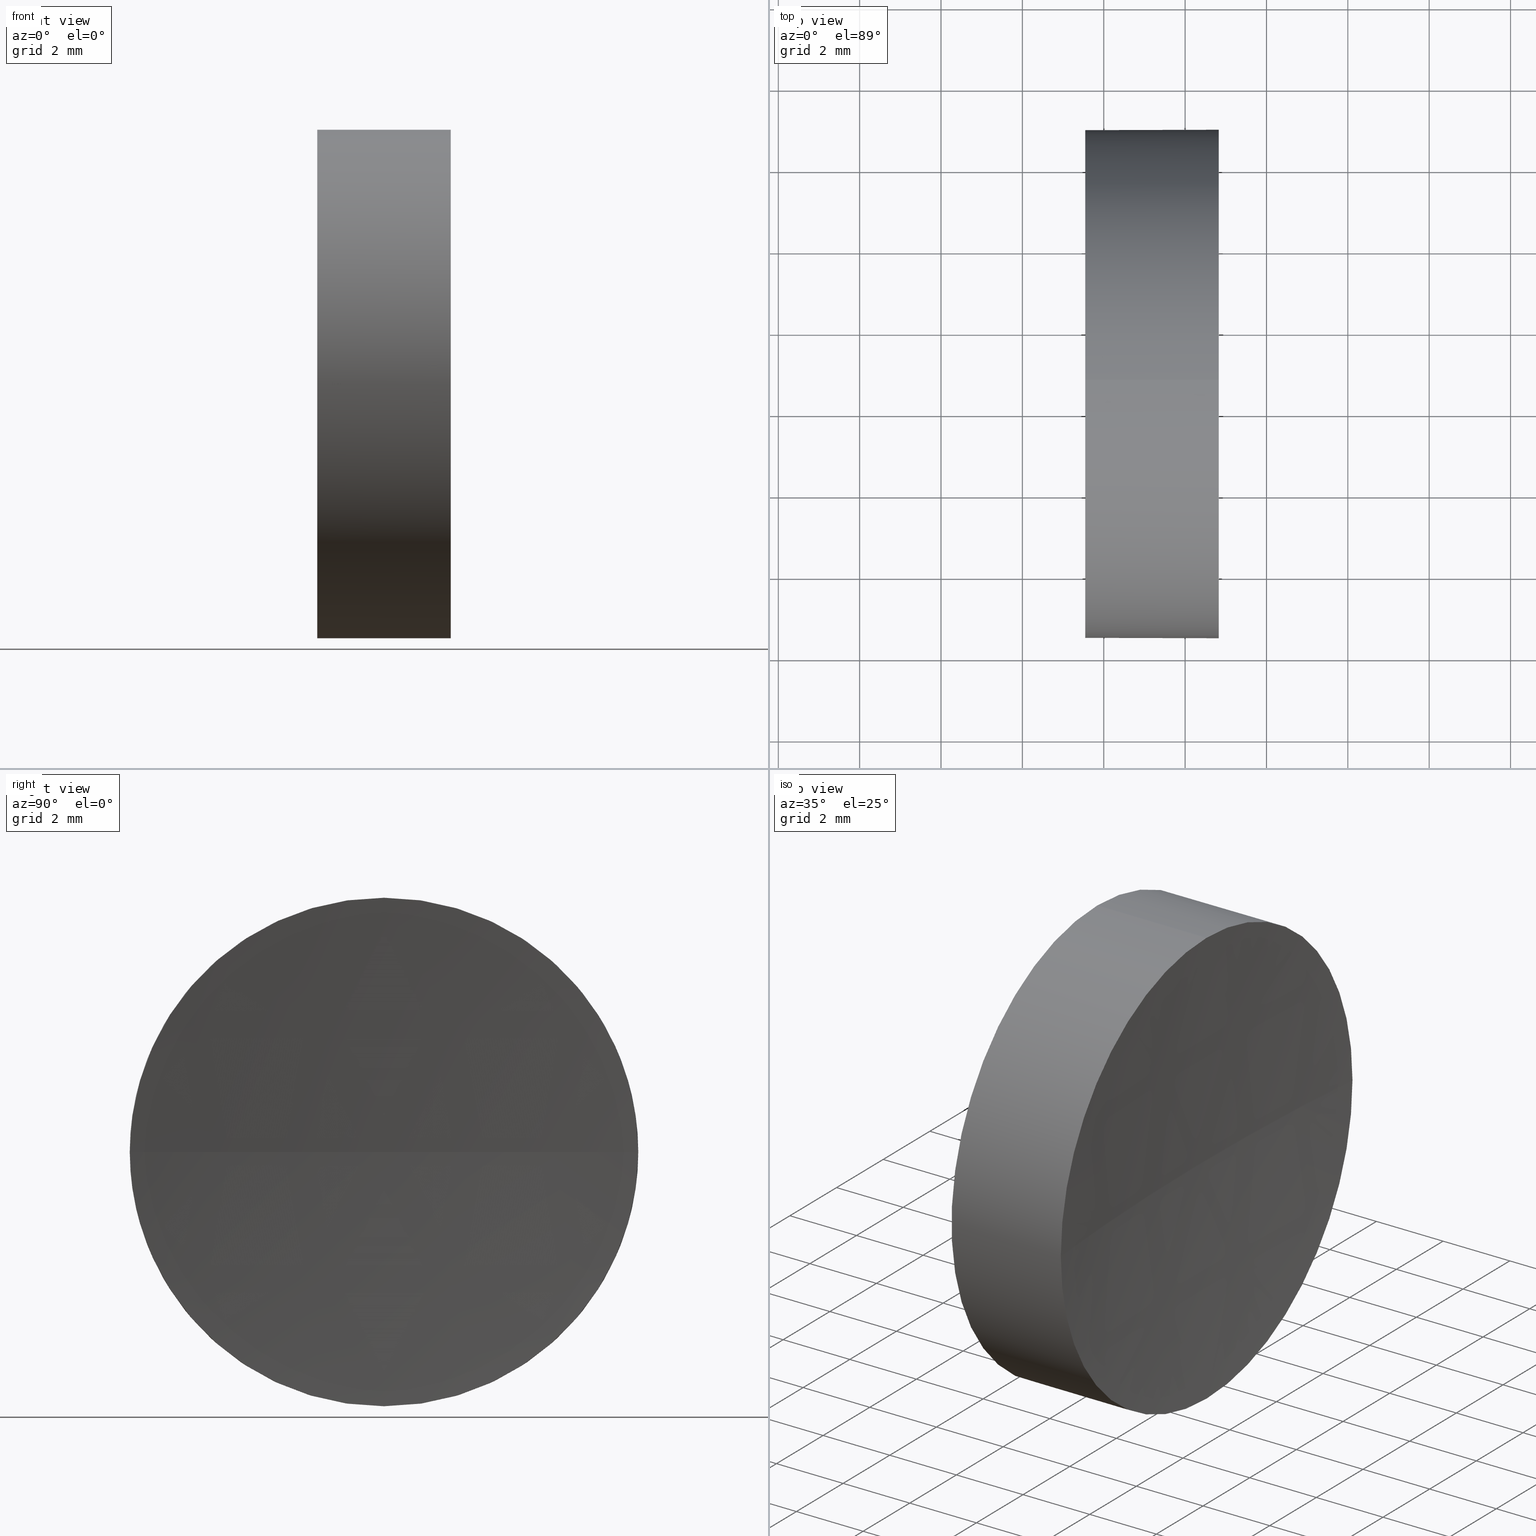
[diagram: canonical four-view strip — front | top / right | iso, engineering-drawing reading convention]
A machine part, canonical four-view strip (front | top / right | iso — engineering-drawing reading convention). The complete STEP part file that produces these views, byte-faithful:
ISO-10303-21;
HEADER;
FILE_DESCRIPTION (( 'STEP AP214' ),
    '1' );
FILE_NAME ('270006.STEP',
    '2019-07-22T02:40:35',
    ( '' ),
    ( '' ),
    'SwSTEP 2.0',
    'SolidWorks 2016',
    '' );
FILE_SCHEMA (( 'AUTOMOTIVE_DESIGN' ));
ENDSEC;

DATA;
#1 = ORIENTED_EDGE ( 'NONE', *, *, #84, .T. ) ;
#2 = SURFACE_SIDE_STYLE ('',( #158 ) ) ;
#3 = DIRECTION ( 'NONE',  ( 0.0000000000000000000, 1.000000000000000000, 0.0000000000000000000 ) ) ;
#4 =( NAMED_UNIT ( * ) SI_UNIT ( $, .STERADIAN. ) SOLID_ANGLE_UNIT ( ) );
#5 = LINE ( 'NONE', #25, #62 ) ;
#6 = COLOUR_RGB ( '',1.000000000000000000, 1.000000000000000000, 1.000000000000000000 ) ;
#7 = VERTEX_POINT ( 'NONE', #59 ) ;
#8 = AXIS2_PLACEMENT_3D ( 'NONE', #148, #145, #49 ) ;
#9 = VERTEX_POINT ( 'NONE', #73 ) ;
#10 = CARTESIAN_POINT ( 'NONE',  ( 60.82590393042841700, 28.43901056168615700, -7.654042494670979300E-016 ) ) ;
#11 = CYLINDRICAL_SURFACE ( 'NONE', #96, 6.250000000000001800 ) ;
#12 = ORIENTED_EDGE ( 'NONE', *, *, #84, .F. ) ;
#13 = DIRECTION ( 'NONE',  ( -1.000000000000000000, -0.0000000000000000000, -0.0000000000000000000 ) ) ;
#14 =( NAMED_UNIT ( * ) SI_UNIT ( $, .STERADIAN. ) SOLID_ANGLE_UNIT ( ) );
#15 = EDGE_LOOP ( 'NONE', ( #157, #102, #154, #12, #116 ) ) ;
#16 = CARTESIAN_POINT ( 'NONE',  ( 60.82590393042841000, 34.68901056168621700, -6.250000000000004400 ) ) ;
#17 = ORIENTED_EDGE ( 'NONE', *, *, #112, .F. ) ;
#18 = UNCERTAINTY_MEASURE_WITH_UNIT (LENGTH_MEASURE( 1.000000000000000100E-005 ), #44, 'distance_accuracy_value', 'NONE');
#19 = ORIENTED_EDGE ( 'NONE', *, *, #117, .T. ) ;
#20 = SURFACE_STYLE_FILL_AREA ( #72 ) ;
#21 = DIRECTION ( 'NONE',  ( 0.0000000000000000000, 0.0000000000000000000, 1.000000000000000000 ) ) ;
#22 = PRODUCT ( '270006', '270006', '', ( #30 ) ) ;
#23 = DIRECTION ( 'NONE',  ( -1.000000000000000000, -0.0000000000000000000, -0.0000000000000000000 ) ) ;
#24 = FACE_OUTER_BOUND ( 'NONE', #105, .T. ) ;
#25 = CARTESIAN_POINT ( 'NONE',  ( 54.49257150108255100, 34.68901056168621700, 6.250000000000001800 ) ) ;
#26 = LINE ( 'NONE', #107, #171 ) ;
#27 = DIRECTION ( 'NONE',  ( 0.0000000000000000000, 0.0000000000000000000, 1.000000000000000000 ) ) ;
#28 = DIRECTION ( 'NONE',  ( 0.0000000000000000000, 0.0000000000000000000, 1.000000000000000000 ) ) ;
#29 = AXIS2_PLACEMENT_3D ( 'NONE', #65, #177, #146 ) ;
#30 = PRODUCT_CONTEXT ( 'NONE', #68, 'mechanical' ) ;
#31 = CIRCLE ( 'NONE', #151, 6.249999999999998200 ) ;
#32 = EDGE_CURVE ( 'NONE', #85, #130, #165, .T. ) ;
#33 = UNCERTAINTY_MEASURE_WITH_UNIT (LENGTH_MEASURE( 1.000000000000000100E-005 ), #113, 'distance_accuracy_value', 'NONE');
#34 = CARTESIAN_POINT ( 'NONE',  ( 57.54632776745975800, 34.68901056168621700, -6.249999999999998200 ) ) ;
#35 = CARTESIAN_POINT ( 'NONE',  ( 57.54632776745975800, 34.68901056168621700, 0.0000000000000000000 ) ) ;
#36 = CARTESIAN_POINT ( 'NONE',  ( 60.54632776735011400, 34.68901056168618200, 0.0000000000000000000 ) ) ;
#37 = DIRECTION ( 'NONE',  ( 0.0000000000000000000, 0.0000000000000000000, 1.000000000000000000 ) ) ;
#38 = DIRECTION ( 'NONE',  ( 1.000000000000000000, 0.0000000000000000000, 0.0000000000000000000 ) ) ;
#39 = CIRCLE ( 'NONE', #29, 6.250000000000005300 ) ;
#40 = DIRECTION ( 'NONE',  ( 0.0000000000000000000, 0.0000000000000000000, -1.000000000000000000 ) ) ;
#41 = AXIS2_PLACEMENT_3D ( 'NONE', #139, #135, #121 ) ;
#42 = AXIS2_PLACEMENT_3D ( 'NONE', #76, #54, #3 ) ;
#43 = CIRCLE ( 'NONE', #71, 6.250000000000005300 ) ;
#44 =( LENGTH_UNIT ( ) NAMED_UNIT ( * ) SI_UNIT ( .MILLI., .METRE. ) );
#45 = DIRECTION ( 'NONE',  ( 0.0000000000000000000, 0.0000000000000000000, -1.000000000000000000 ) ) ;
#46 = VERTEX_POINT ( 'NONE', #34 ) ;
#47 = DIRECTION ( 'NONE',  ( -1.000000000000000000, -0.0000000000000000000, -0.0000000000000000000 ) ) ;
#48 = APPLICATION_PROTOCOL_DEFINITION ( 'draft international standard', 'automotive_design', 1998, #68 ) ;
#49 = DIRECTION ( 'NONE',  ( 0.0000000000000000000, 0.0000000000000000000, 1.000000000000000000 ) ) ;
#50 = APPLICATION_PROTOCOL_DEFINITION ( 'draft international standard', 'automotive_design', 1998, #128 ) ;
#51 = MANIFOLD_SOLID_BREP ( '��ת1', #150 ) ;
#52 = AXIS2_PLACEMENT_3D ( 'NONE', #127, #13, #178 ) ;
#53 =( NAMED_UNIT ( * ) PLANE_ANGLE_UNIT ( ) SI_UNIT ( $, .RADIAN. ) );
#54 = DIRECTION ( 'NONE',  ( 0.0000000000000000000, 0.0000000000000000000, -1.000000000000000000 ) ) ;
#55 = EDGE_CURVE ( 'NONE', #182, #46, #26, .T. ) ;
#56 = AXIS2_PLACEMENT_3D ( 'NONE', #110, #78, #66 ) ;
#57 = ADVANCED_FACE ( 'NONE', ( #83 ), #11, .T. ) ;
#58 =( GEOMETRIC_REPRESENTATION_CONTEXT ( 3 ) GLOBAL_UNCERTAINTY_ASSIGNED_CONTEXT ( ( #184 ) ) GLOBAL_UNIT_ASSIGNED_CONTEXT ( ( #109, #175, #14 ) ) REPRESENTATION_CONTEXT ( 'NONE', 'WORKASPACE' ) );
#59 = CARTESIAN_POINT ( 'NONE',  ( 60.82590393042841000, 34.68901056168621700, 6.250000000000004400 ) ) ;
#60 = DIRECTION ( 'NONE',  ( -1.000000000000000000, -0.0000000000000000000, -0.0000000000000000000 ) ) ;
#61 = ORIENTED_EDGE ( 'NONE', *, *, #112, .T. ) ;
#62 = VECTOR ( 'NONE', #23, 1000.000000000000000 ) ;
#63 = FILL_AREA_STYLE_COLOUR ( '', #6 ) ;
#64 = AXIS2_PLACEMENT_3D ( 'NONE', #185, #124, #21 ) ;
#65 = CARTESIAN_POINT ( 'NONE',  ( 60.82590393042841000, 34.68901056168621700, 0.0000000000000000000 ) ) ;
#66 = DIRECTION ( 'NONE',  ( 0.0000000000000000000, 0.0000000000000000000, 1.000000000000000000 ) ) ;
#67 = MECHANICAL_DESIGN_GEOMETRIC_PRESENTATION_REPRESENTATION (  '', ( #91 ), #131 ) ;
#68 = APPLICATION_CONTEXT ( 'automotive_design' ) ;
#69 = CIRCLE ( 'NONE', #161, 70.00000000000000000 ) ;
#70 = EDGE_CURVE ( 'NONE', #182, #85, #152, .T. ) ;
#71 = AXIS2_PLACEMENT_3D ( 'NONE', #143, #47, #179 ) ;
#72 = FILL_AREA_STYLE ('',( #63 ) ) ;
#73 = CARTESIAN_POINT ( 'NONE',  ( 60.82590393042841700, 40.93901056168623900, 0.0000000000000000000 ) ) ;
#74 = DIRECTION ( 'NONE',  ( 1.000000000000000000, 0.0000000000000000000, 0.0000000000000000000 ) ) ;
#75 = CARTESIAN_POINT ( 'NONE',  ( 130.5463277673501100, 34.68901056168617500, 0.0000000000000000000 ) ) ;
#76 = CARTESIAN_POINT ( 'NONE',  ( 130.5463277673501100, 34.68901056168617500, 0.0000000000000000000 ) ) ;
#77 = ORIENTED_EDGE ( 'NONE', *, *, #115, .T. ) ;
#78 = DIRECTION ( 'NONE',  ( -1.000000000000000000, -0.0000000000000000000, -0.0000000000000000000 ) ) ;
#79 = DIRECTION ( 'NONE',  ( 0.0000000000000000000, 1.000000000000000000, 0.0000000000000000000 ) ) ;
#80 = PRODUCT_DEFINITION ( 'δ֪', '', #166, #133 ) ;
#81 = PRESENTATION_LAYER_ASSIGNMENT (  '', '', ( #91 ) ) ;
#82 = FACE_OUTER_BOUND ( 'NONE', #108, .T. ) ;
#83 = FACE_OUTER_BOUND ( 'NONE', #15, .T. ) ;
#84 = EDGE_CURVE ( 'NONE', #7, #162, #5, .T. ) ;
#85 = VERTEX_POINT ( 'NONE', #10 ) ;
#86 = FACE_OUTER_BOUND ( 'NONE', #99, .T. ) ;
#87 = ADVANCED_FACE ( 'NONE', ( #118 ), #106, .F. ) ;
#88 = ORIENTED_EDGE ( 'NONE', *, *, #126, .F. ) ;
#89 = SURFACE_STYLE_USAGE ( .BOTH. , #136 ) ;
#90 = SPHERICAL_SURFACE ( 'NONE', #170, 70.00000000000000000 ) ;
#91 = STYLED_ITEM ( 'NONE', ( #98 ), #51 ) ;
#92 = DIRECTION ( 'NONE',  ( 0.0000000000000000000, 0.0000000000000000000, 1.000000000000000000 ) ) ;
#93 = PRESENTATION_STYLE_ASSIGNMENT (( #111 ) ) ;
#94 = DIRECTION ( 'NONE',  ( 1.000000000000000000, 0.0000000000000000000, 0.0000000000000000000 ) ) ;
#95 = ORIENTED_EDGE ( 'NONE', *, *, #117, .F. ) ;
#96 = AXIS2_PLACEMENT_3D ( 'NONE', #172, #174, #92 ) ;
#97 = CARTESIAN_POINT ( 'NONE',  ( 57.54632776745975800, 34.68901056168621700, 0.0000000000000000000 ) ) ;
#98 = PRESENTATION_STYLE_ASSIGNMENT (( #89 ) ) ;
#99 = EDGE_LOOP ( 'NONE', ( #180, #173, #120, #19 ) ) ;
#100 = AXIS2_PLACEMENT_3D ( 'NONE', #176, #28, #38 ) ;
#101 = COLOUR_RGB ( '',1.000000000000000000, 1.000000000000000000, 1.000000000000000000 ) ;
#102 = ORIENTED_EDGE ( 'NONE', *, *, #55, .T. ) ;
#103 = PRODUCT_DEFINITION_SHAPE ( 'NONE', 'NONE',  #80 ) ;
#104 = EDGE_CURVE ( 'NONE', #9, #182, #43, .T. ) ;
#105 = EDGE_LOOP ( 'NONE', ( #132, #163, #137, #1, #17 ) ) ;
#106 = PLANE ( 'NONE',  #153 ) ;
#107 = CARTESIAN_POINT ( 'NONE',  ( 54.49257150108255100, 34.68901056168621700, -6.250000000000001800 ) ) ;
#108 = EDGE_LOOP ( 'NONE', ( #168, #123, #95, #88 ) ) ;
#109 =( LENGTH_UNIT ( ) NAMED_UNIT ( * ) SI_UNIT ( .MILLI., .METRE. ) );
#110 = CARTESIAN_POINT ( 'NONE',  ( 57.54632776745975800, 34.68901056168621700, 0.0000000000000000000 ) ) ;
#111 = SURFACE_STYLE_USAGE ( .BOTH. , #2 ) ;
#112 = EDGE_CURVE ( 'NONE', #46, #162, #31, .T. ) ;
#113 =( LENGTH_UNIT ( ) NAMED_UNIT ( * ) SI_UNIT ( .MILLI., .METRE. ) );
#114 = MECHANICAL_DESIGN_GEOMETRIC_PRESENTATION_REPRESENTATION (  '', ( #169 ), #181 ) ;
#115 = EDGE_CURVE ( 'NONE', #162, #46, #149, .T. ) ;
#116 = ORIENTED_EDGE ( 'NONE', *, *, #126, .T. ) ;
#117 = EDGE_CURVE ( 'NONE', #9, #130, #69, .T. ) ;
#118 = FACE_OUTER_BOUND ( 'NONE', #183, .T. ) ;
#119 = PRESENTATION_LAYER_ASSIGNMENT (  '', '', ( #169 ) ) ;
#120 = ORIENTED_EDGE ( 'NONE', *, *, #104, .F. ) ;
#121 = DIRECTION ( 'NONE',  ( 0.0000000000000000000, 1.000000000000000000, 1.224646799147353200E-016 ) ) ;
#122 = ADVANCED_FACE ( 'NONE', ( #82 ), #90, .F. ) ;
#123 = ORIENTED_EDGE ( 'NONE', *, *, #32, .T. ) ;
#124 = DIRECTION ( 'NONE',  ( -1.000000000000000000, -0.0000000000000000000, -0.0000000000000000000 ) ) ;
#125 = FILL_AREA_STYLE_COLOUR ( '', #101 ) ;
#126 = EDGE_CURVE ( 'NONE', #7, #9, #134, .T. ) ;
#127 = CARTESIAN_POINT ( 'NONE',  ( 54.49257150108255100, 34.68901056168621700, 0.0000000000000000000 ) ) ;
#128 = APPLICATION_CONTEXT ( 'automotive_design' ) ;
#129 = PRODUCT_RELATED_PRODUCT_CATEGORY ( 'part', '', ( #22 ) ) ;
#130 = VERTEX_POINT ( 'NONE', #36 ) ;
#131 =( GEOMETRIC_REPRESENTATION_CONTEXT ( 3 ) GLOBAL_UNCERTAINTY_ASSIGNED_CONTEXT ( ( #18 ) ) GLOBAL_UNIT_ASSIGNED_CONTEXT ( ( #44, #142, #186 ) ) REPRESENTATION_CONTEXT ( 'NONE', 'WORKASPACE' ) );
#132 = ORIENTED_EDGE ( 'NONE', *, *, #55, .F. ) ;
#133 = PRODUCT_DEFINITION_CONTEXT ( 'detailed design', #128, 'design' ) ;
#134 = CIRCLE ( 'NONE', #8, 6.250000000000005300 ) ;
#135 = DIRECTION ( 'NONE',  ( 0.0000000000000000000, 1.224646799147353200E-016, -1.000000000000000000 ) ) ;
#136 = SURFACE_SIDE_STYLE ('',( #20 ) ) ;
#137 = ORIENTED_EDGE ( 'NONE', *, *, #164, .T. ) ;
#138 = ADVANCED_FACE ( 'NONE', ( #24 ), #167, .T. ) ;
#139 = CARTESIAN_POINT ( 'NONE',  ( 130.5463277673501100, 34.68901056168617500, 0.0000000000000000000 ) ) ;
#140 = SHAPE_DEFINITION_REPRESENTATION ( #103, #155 ) ;
#141 = SPHERICAL_SURFACE ( 'NONE', #42, 70.00000000000000000 ) ;
#142 =( NAMED_UNIT ( * ) PLANE_ANGLE_UNIT ( ) SI_UNIT ( $, .RADIAN. ) );
#143 = CARTESIAN_POINT ( 'NONE',  ( 60.82590393042841000, 34.68901056168621700, 0.0000000000000000000 ) ) ;
#144 = FILL_AREA_STYLE ('',( #125 ) ) ;
#145 = DIRECTION ( 'NONE',  ( -1.000000000000000000, -0.0000000000000000000, -0.0000000000000000000 ) ) ;
#146 = DIRECTION ( 'NONE',  ( 0.0000000000000000000, 0.0000000000000000000, 1.000000000000000000 ) ) ;
#147 = DIRECTION ( 'NONE',  ( -1.000000000000000000, -0.0000000000000000000, -0.0000000000000000000 ) ) ;
#148 = CARTESIAN_POINT ( 'NONE',  ( 60.82590393042841000, 34.68901056168621700, 0.0000000000000000000 ) ) ;
#149 = CIRCLE ( 'NONE', #56, 6.249999999999998200 ) ;
#150 = CLOSED_SHELL ( 'NONE', ( #57, #122, #156, #138, #87 ) ) ;
#151 = AXIS2_PLACEMENT_3D ( 'NONE', #97, #147, #37 ) ;
#152 = CIRCLE ( 'NONE', #64, 6.250000000000005300 ) ;
#153 = AXIS2_PLACEMENT_3D ( 'NONE', #35, #74, #45 ) ;
#154 = ORIENTED_EDGE ( 'NONE', *, *, #115, .F. ) ;
#155 = ADVANCED_BREP_SHAPE_REPRESENTATION ( '270006', ( #51, #100 ), #58 ) ;
#156 = ADVANCED_FACE ( 'NONE', ( #86 ), #141, .F. ) ;
#157 = ORIENTED_EDGE ( 'NONE', *, *, #104, .T. ) ;
#158 = SURFACE_STYLE_FILL_AREA ( #144 ) ;
#159 = CARTESIAN_POINT ( 'NONE',  ( 130.5463277673501100, 34.68901056168617500, 0.0000000000000000000 ) ) ;
#160 = CARTESIAN_POINT ( 'NONE',  ( 57.54632776745975800, 34.68901056168621700, 6.249999999999998200 ) ) ;
#161 = AXIS2_PLACEMENT_3D ( 'NONE', #75, #27, #94 ) ;
#162 = VERTEX_POINT ( 'NONE', #160 ) ;
#163 = ORIENTED_EDGE ( 'NONE', *, *, #70, .T. ) ;
#164 = EDGE_CURVE ( 'NONE', #85, #7, #39, .T. ) ;
#165 = CIRCLE ( 'NONE', #41, 70.00000000000000000 ) ;
#166 = PRODUCT_DEFINITION_FORMATION_WITH_SPECIFIED_SOURCE ( '�κ�', '', #22, .NOT_KNOWN. ) ;
#167 = CYLINDRICAL_SURFACE ( 'NONE', #52, 6.250000000000001800 ) ;
#168 = ORIENTED_EDGE ( 'NONE', *, *, #164, .F. ) ;
#169 = STYLED_ITEM ( 'NONE', ( #93 ), #155 ) ;
#170 = AXIS2_PLACEMENT_3D ( 'NONE', #159, #40, #79 ) ;
#171 = VECTOR ( 'NONE', #60, 1000.000000000000000 ) ;
#172 = CARTESIAN_POINT ( 'NONE',  ( 54.49257150108255100, 34.68901056168621700, 0.0000000000000000000 ) ) ;
#173 = ORIENTED_EDGE ( 'NONE', *, *, #70, .F. ) ;
#174 = DIRECTION ( 'NONE',  ( -1.000000000000000000, -0.0000000000000000000, -0.0000000000000000000 ) ) ;
#175 =( NAMED_UNIT ( * ) PLANE_ANGLE_UNIT ( ) SI_UNIT ( $, .RADIAN. ) );
#176 = CARTESIAN_POINT ( 'NONE',  ( 0.0000000000000000000, 0.0000000000000000000, 0.0000000000000000000 ) ) ;
#177 = DIRECTION ( 'NONE',  ( -1.000000000000000000, -0.0000000000000000000, -0.0000000000000000000 ) ) ;
#178 = DIRECTION ( 'NONE',  ( 0.0000000000000000000, 0.0000000000000000000, 1.000000000000000000 ) ) ;
#179 = DIRECTION ( 'NONE',  ( 0.0000000000000000000, 0.0000000000000000000, 1.000000000000000000 ) ) ;
#180 = ORIENTED_EDGE ( 'NONE', *, *, #32, .F. ) ;
#181 =( GEOMETRIC_REPRESENTATION_CONTEXT ( 3 ) GLOBAL_UNCERTAINTY_ASSIGNED_CONTEXT ( ( #33 ) ) GLOBAL_UNIT_ASSIGNED_CONTEXT ( ( #113, #53, #4 ) ) REPRESENTATION_CONTEXT ( 'NONE', 'WORKASPACE' ) );
#182 = VERTEX_POINT ( 'NONE', #16 ) ;
#183 = EDGE_LOOP ( 'NONE', ( #77, #61 ) ) ;
#184 = UNCERTAINTY_MEASURE_WITH_UNIT (LENGTH_MEASURE( 1.000000000000000100E-005 ), #109, 'distance_accuracy_value', 'NONE');
#185 = CARTESIAN_POINT ( 'NONE',  ( 60.82590393042841000, 34.68901056168621700, 0.0000000000000000000 ) ) ;
#186 =( NAMED_UNIT ( * ) SI_UNIT ( $, .STERADIAN. ) SOLID_ANGLE_UNIT ( ) );
ENDSEC;
END-ISO-10303-21;
